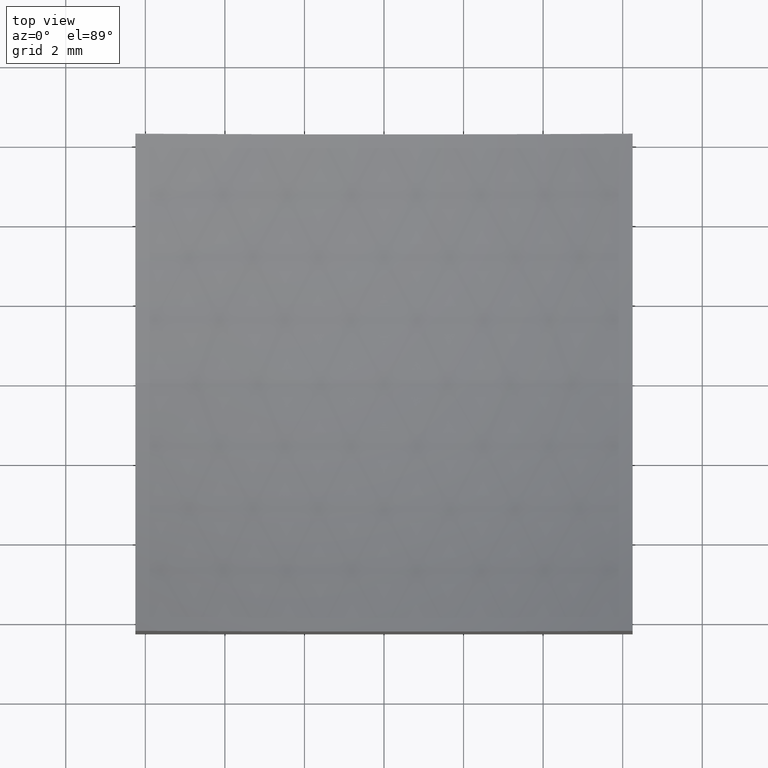
[diagram: clean part render]
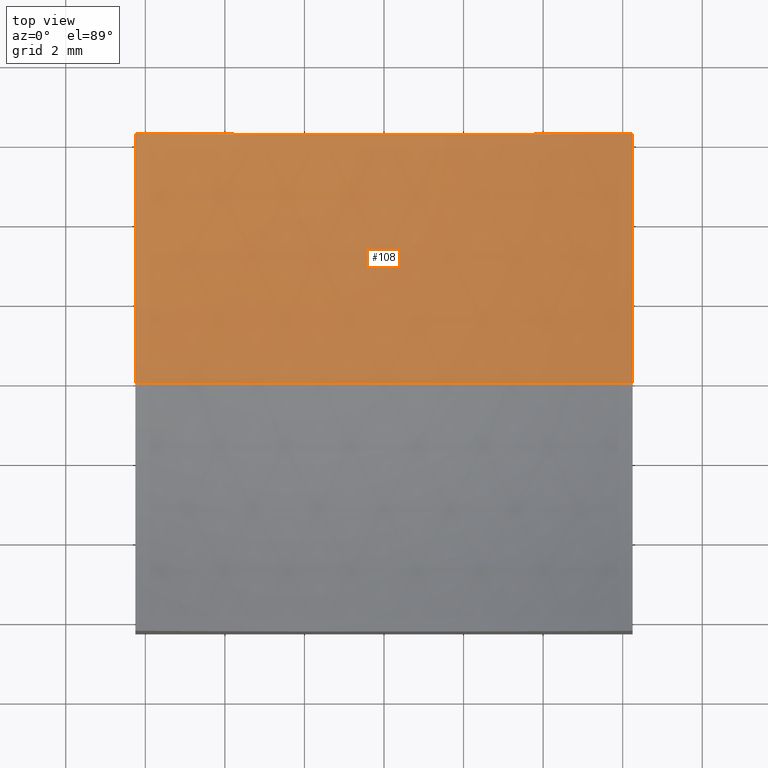
[diagram: same view with one face highlighted and labeled with its STEP entity id]
A machine part, top view. The second image highlights one B-rep face of the part: STEP entity #108.
In plain terms, the highlighted spherical surface has radius 20 mm.
Its self-contained STEP definition (entity closure, byte-faithful):
#4 = CARTESIAN_POINT ( 'NONE',  ( 6.250000000000000000, 0.0000000000000000000, 4.001644808036667555 ) ) ;
#6 = DIRECTION ( 'NONE',  ( 0.0000000000000000000, 1.000000000000000000, 0.0000000000000000000 ) ) ;
#10 = VERTEX_POINT ( 'NONE', #169 ) ;
#11 = ORIENTED_EDGE ( 'NONE', *, *, #84, .F. ) ;
#17 = CIRCLE ( 'NONE', #158, 18.99835519196332712 ) ;
#25 = CARTESIAN_POINT ( 'NONE',  ( 2.816687638038912352E-15, 6.250000000000000888, 23.00000000000000000 ) ) ;
#33 = ORIENTED_EDGE ( 'NONE', *, *, #95, .T. ) ;
#35 = CARTESIAN_POINT ( 'NONE',  ( 6.250000000000000000, 0.0000000000000000000, 23.00000000000000000 ) ) ;
#43 = AXIS2_PLACEMENT_3D ( 'NONE', #235, #86, #45 ) ;
#45 = DIRECTION ( 'NONE',  ( 1.000000000000000000, 0.0000000000000000000, 1.734723475976807094E-16 ) ) ;
#50 = ORIENTED_EDGE ( 'NONE', *, *, #90, .F. ) ;
#55 = ORIENTED_EDGE ( 'NONE', *, *, #232, .T. ) ;
#57 = DIRECTION ( 'NONE',  ( 0.0000000000000000000, 0.0000000000000000000, -1.000000000000000000 ) ) ;
#62 = DIRECTION ( 'NONE',  ( 1.224646799147353207E-16, 1.000000000000000000, 2.504325565046283805E-32 ) ) ;
#64 = AXIS2_PLACEMENT_3D ( 'NONE', #200, #202, #74 ) ;
#73 = VERTEX_POINT ( 'NONE', #183 ) ;
#74 = DIRECTION ( 'NONE',  ( 0.0000000000000000000, 0.0000000000000000000, -1.000000000000000000 ) ) ;
#84 = EDGE_CURVE ( 'NONE', #73, #10, #17, .T. ) ;
#86 = DIRECTION ( 'NONE',  ( -0.0000000000000000000, 1.000000000000000000, 0.0000000000000000000 ) ) ;
#87 = CARTESIAN_POINT ( 'NONE',  ( -6.250000000000000000, 0.0000000000000000000, 23.00000000000000000 ) ) ;
#88 = FACE_OUTER_BOUND ( 'NONE', #225, .T. ) ;
#90 = EDGE_CURVE ( 'NONE', #149, #73, #215, .T. ) ;
#95 = EDGE_CURVE ( 'NONE', #211, #10, #103, .T. ) ;
#100 = CARTESIAN_POINT ( 'NONE',  ( 6.250000000000000000, 6.250000000000000888, 5.059124881990842759 ) ) ;
#102 = CIRCLE ( 'NONE', #187, 18.99835519196333067 ) ;
#103 = CIRCLE ( 'NONE', #122, 18.99835519196332712 ) ;
#108 = ADVANCED_FACE ( 'NONE', ( #88 ), #217, .F. ) ;
#122 = AXIS2_PLACEMENT_3D ( 'NONE', #25, #6, #219 ) ;
#145 = CARTESIAN_POINT ( 'NONE',  ( 8.131208459295974111E-15, 0.0000000000000000000, 2.999999999999999112 ) ) ;
#146 = VERTEX_POINT ( 'NONE', #4 ) ;
#149 = VERTEX_POINT ( 'NONE', #145 ) ;
#158 = AXIS2_PLACEMENT_3D ( 'NONE', #87, #181, #159 ) ;
#159 = DIRECTION ( 'NONE',  ( 0.0000000000000000000, 0.0000000000000000000, -1.000000000000000000 ) ) ;
#165 = ORIENTED_EDGE ( 'NONE', *, *, #172, .T. ) ;
#168 = CIRCLE ( 'NONE', #64, 20.00000000000000000 ) ;
#169 = CARTESIAN_POINT ( 'NONE',  ( -6.250000000000000000, 6.250000000000000888, 5.059124881990846312 ) ) ;
#171 = DIRECTION ( 'NONE',  ( 1.000000000000000000, 0.0000000000000000000, -0.0000000000000000000 ) ) ;
#172 = EDGE_CURVE ( 'NONE', #149, #146, #168, .T. ) ;
#181 = DIRECTION ( 'NONE',  ( 1.000000000000000000, 0.0000000000000000000, -0.0000000000000000000 ) ) ;
#183 = CARTESIAN_POINT ( 'NONE',  ( -6.250000000000000000, 7.654042494670965495E-16, 4.001644808036671108 ) ) ;
#184 = DIRECTION ( 'NONE',  ( -1.000000000000000000, 1.224646799147353207E-16, 0.0000000000000000000 ) ) ;
#187 = AXIS2_PLACEMENT_3D ( 'NONE', #35, #171, #57 ) ;
#200 = CARTESIAN_POINT ( 'NONE',  ( 2.816687638038912352E-15, 0.0000000000000000000, 23.00000000000000000 ) ) ;
#202 = DIRECTION ( 'NONE',  ( 0.0000000000000000000, -1.000000000000000000, 0.0000000000000000000 ) ) ;
#211 = VERTEX_POINT ( 'NONE', #100 ) ;
#215 = CIRCLE ( 'NONE', #231, 20.00000000000000000 ) ;
#217 = SPHERICAL_SURFACE ( 'NONE', #43, 20.00000000000000000 ) ;
#219 = DIRECTION ( 'NONE',  ( 0.0000000000000000000, 0.0000000000000000000, 1.000000000000000000 ) ) ;
#225 = EDGE_LOOP ( 'NONE', ( #50, #165, #55, #33, #11 ) ) ;
#231 = AXIS2_PLACEMENT_3D ( 'NONE', #234, #62, #184 ) ;
#232 = EDGE_CURVE ( 'NONE', #146, #211, #102, .T. ) ;
#234 = CARTESIAN_POINT ( 'NONE',  ( 2.816687638038912352E-15, 0.0000000000000000000, 23.00000000000000000 ) ) ;
#235 = CARTESIAN_POINT ( 'NONE',  ( 2.816687638038912352E-15, 0.0000000000000000000, 23.00000000000000000 ) ) ;